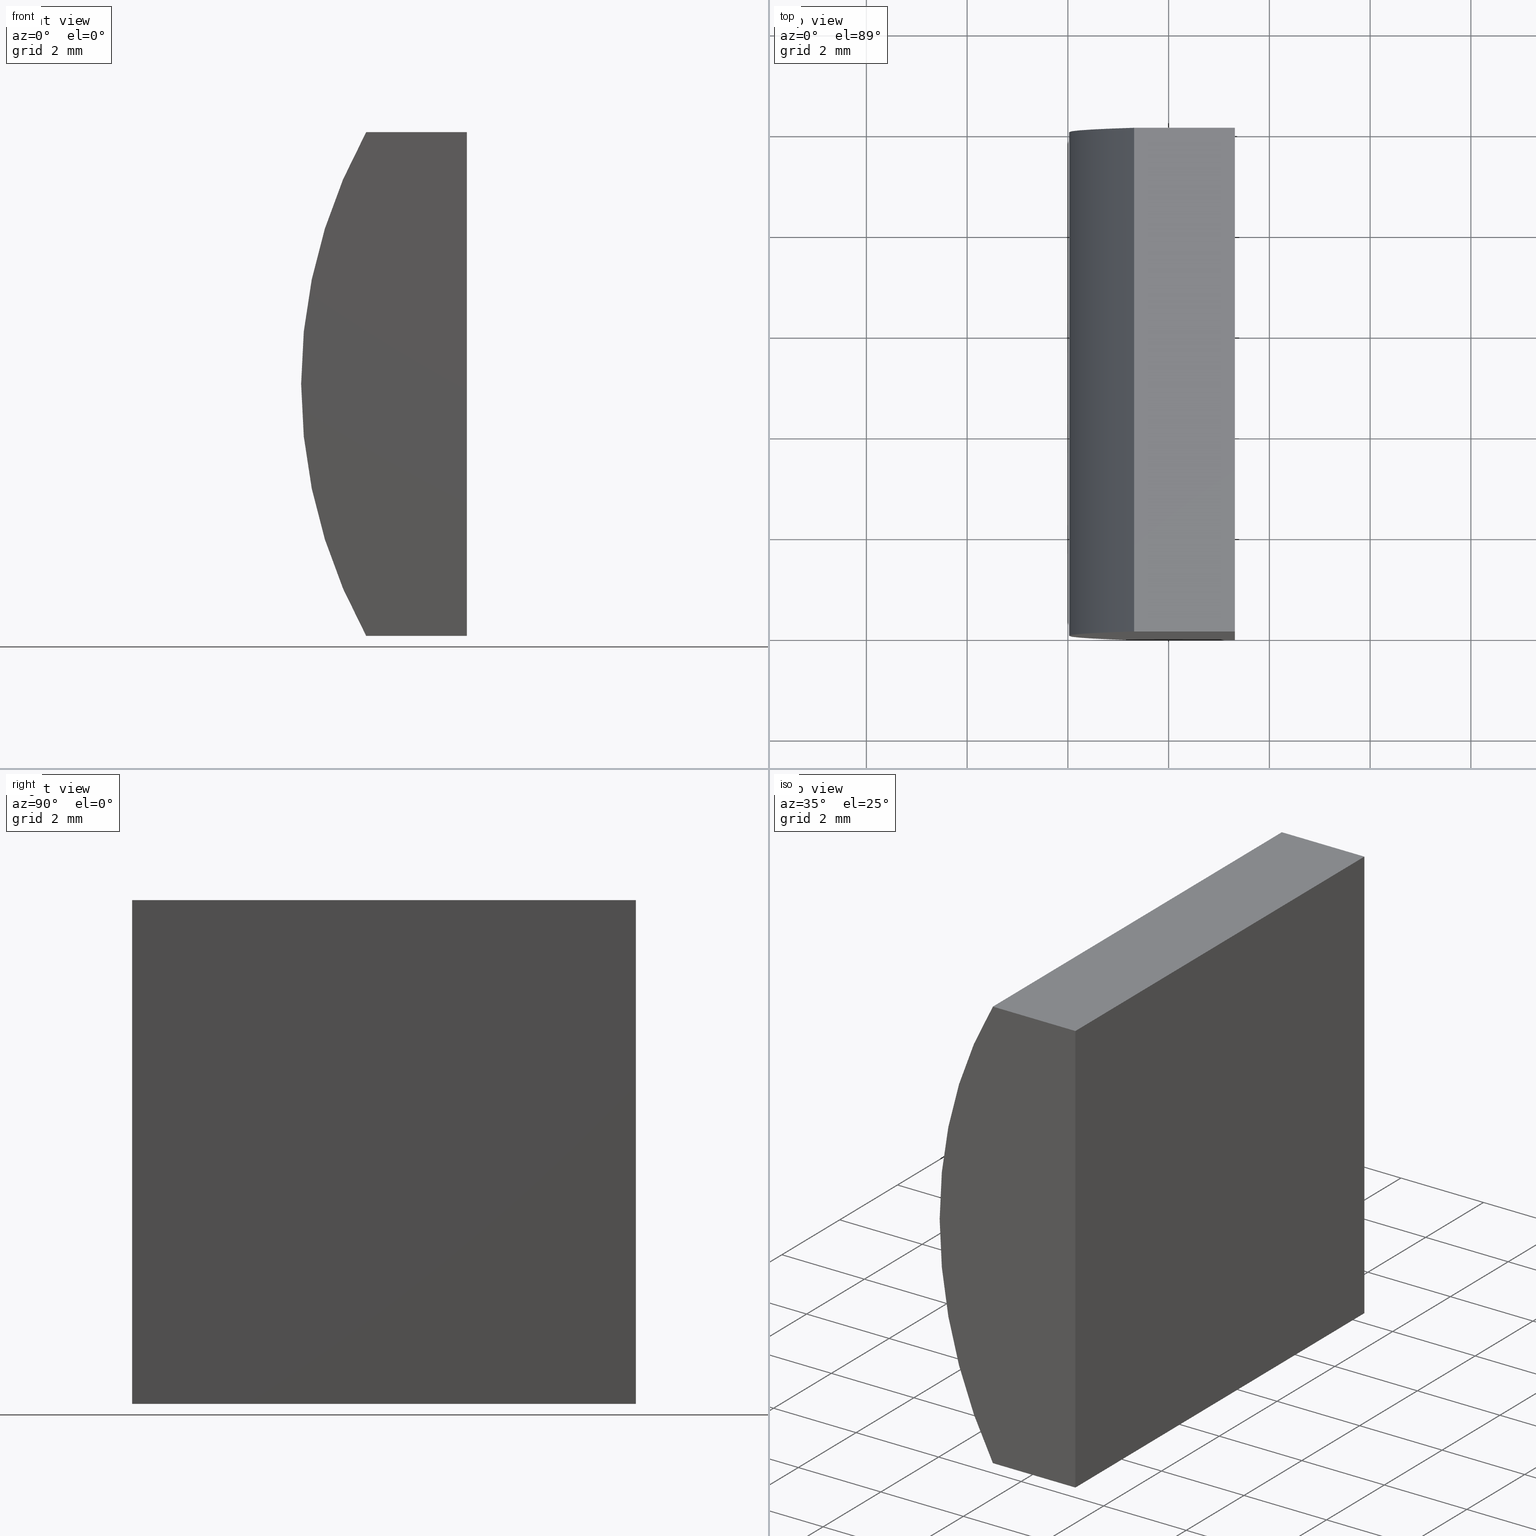
[diagram: canonical four-view strip — front | top / right | iso, engineering-drawing reading convention]
A machine part, canonical four-view strip (front | top / right | iso — engineering-drawing reading convention). The complete STEP part file that produces these views, byte-faithful:
ISO-10303-21;
HEADER;
FILE_DESCRIPTION (( 'STEP AP214' ),
    '1' );
FILE_NAME ('155008.STEP',
    '2019-06-14T07:46:34',
    ( 'user' ),
    ( '΢���й�' ),
    'SwSTEP 2.0',
    'SolidWorks 2016',
    '' );
FILE_SCHEMA (( 'AUTOMOTIVE_DESIGN' ));
ENDSEC;

DATA;
#1 = DIRECTION ( 'NONE',  ( -3.469446951953613700E-016, -0.0000000000000000000, -1.000000000000000000 ) ) ;
#2 = CARTESIAN_POINT ( 'NONE',  ( 4.355204334851265500, 10.00000000000000000, 4.286263797015675000E-017 ) ) ;
#3 = SURFACE_STYLE_FILL_AREA ( #128 ) ;
#4 = MECHANICAL_DESIGN_GEOMETRIC_PRESENTATION_REPRESENTATION (  '', ( #39 ), #151 ) ;
#5 = PLANE ( 'NONE',  #122 ) ;
#6 = ORIENTED_EDGE ( 'NONE', *, *, #132, .F. ) ;
#7 = ORIENTED_EDGE ( 'NONE', *, *, #46, .F. ) ;
#8 = PRESENTATION_STYLE_ASSIGNMENT (( #96 ) ) ;
#9 = CARTESIAN_POINT ( 'NONE',  ( 4.355204334851265500, 10.00000000000000000, 4.286263797015675000E-017 ) ) ;
#10 = ORIENTED_EDGE ( 'NONE', *, *, #28, .F. ) ;
#11 =( GEOMETRIC_REPRESENTATION_CONTEXT ( 3 ) GLOBAL_UNCERTAINTY_ASSIGNED_CONTEXT ( ( #64 ) ) GLOBAL_UNIT_ASSIGNED_CONTEXT ( ( #166, #204, #174 ) ) REPRESENTATION_CONTEXT ( 'NONE', 'WORKASPACE' ) );
#12 = CARTESIAN_POINT ( 'NONE',  ( -4.684093204227751900, 10.00000000000000000, 5.000000000000002700 ) ) ;
#13 = APPLICATION_PROTOCOL_DEFINITION ( 'draft international standard', 'automotive_design', 1998, #168 ) ;
#14 = ORIENTED_EDGE ( 'NONE', *, *, #33, .F. ) ;
#15 =( NAMED_UNIT ( * ) PLANE_ANGLE_UNIT ( ) SI_UNIT ( $, .RADIAN. ) );
#16 = PRESENTATION_LAYER_ASSIGNMENT (  '', '', ( #169 ) ) ;
#17 = COLOUR_RGB ( '',1.000000000000000000, 1.000000000000000000, 1.000000000000000000 ) ;
#18 = CARTESIAN_POINT ( 'NONE',  ( -4.684093204227751900, 10.00000000000000000, 5.000000000000002700 ) ) ;
#19 = CARTESIAN_POINT ( 'NONE',  ( -4.684093204227751900, 10.00000000000000000, 5.000000000000002700 ) ) ;
#20 = FACE_OUTER_BOUND ( 'NONE', #199, .T. ) ;
#21 =( NAMED_UNIT ( * ) PLANE_ANGLE_UNIT ( ) SI_UNIT ( $, .RADIAN. ) );
#22 = VECTOR ( 'NONE', #74, 1000.000000000000000 ) ;
#23 = VECTOR ( 'NONE', #198, 1000.000000000000000 ) ;
#24 = VERTEX_POINT ( 'NONE', #89 ) ;
#25 = VERTEX_POINT ( 'NONE', #56 ) ;
#26 = LINE ( 'NONE', #115, #123 ) ;
#27 = AXIS2_PLACEMENT_3D ( 'NONE', #105, #171, #48 ) ;
#28 = EDGE_CURVE ( 'NONE', #24, #108, #68, .T. ) ;
#29 = LINE ( 'NONE', #141, #160 ) ;
#30 = ORIENTED_EDGE ( 'NONE', *, *, #113, .F. ) ;
#31 = SURFACE_STYLE_USAGE ( .BOTH. , #203 ) ;
#32 = ADVANCED_FACE ( 'NONE', ( #187 ), #93, .F. ) ;
#33 = EDGE_CURVE ( 'NONE', #127, #104, #57, .T. ) ;
#34 = VECTOR ( 'NONE', #116, 1000.000000000000000 ) ;
#35 = ORIENTED_EDGE ( 'NONE', *, *, #113, .T. ) ;
#36 = DIRECTION ( 'NONE',  ( -0.0000000000000000000, -1.000000000000000000, -0.0000000000000000000 ) ) ;
#37 = DIRECTION ( 'NONE',  ( 0.0000000000000000000, 1.000000000000000000, 0.0000000000000000000 ) ) ;
#38 = PRODUCT_DEFINITION ( 'δ֪', '', #154, #50 ) ;
#39 = STYLED_ITEM ( 'NONE', ( #71 ), #55 ) ;
#40 = EDGE_CURVE ( 'NONE', #135, #25, #29, .T. ) ;
#41 =( NAMED_UNIT ( * ) SI_UNIT ( $, .STERADIAN. ) SOLID_ANGLE_UNIT ( ) );
#42 = CARTESIAN_POINT ( 'NONE',  ( -4.684093204227755400, 0.0000000000000000000, -4.999999999999997300 ) ) ;
#43 =( GEOMETRIC_REPRESENTATION_CONTEXT ( 3 ) GLOBAL_UNCERTAINTY_ASSIGNED_CONTEXT ( ( #156 ) ) GLOBAL_UNIT_ASSIGNED_CONTEXT ( ( #200, #15, #178 ) ) REPRESENTATION_CONTEXT ( 'NONE', 'WORKASPACE' ) );
#44 = DIRECTION ( 'NONE',  ( 0.0000000000000000000, 1.000000000000000000, 0.0000000000000000000 ) ) ;
#45 = APPLICATION_PROTOCOL_DEFINITION ( 'draft international standard', 'automotive_design', 1998, #73 ) ;
#46 = EDGE_CURVE ( 'NONE', #152, #135, #53, .T. ) ;
#47 = ADVANCED_FACE ( 'NONE', ( #97 ), #76, .T. ) ;
#48 = DIRECTION ( 'NONE',  ( 3.469446951953613700E-016, 0.0000000000000000000, 1.000000000000000000 ) ) ;
#49 = CARTESIAN_POINT ( 'NONE',  ( -4.684093204227751900, 0.0000000000000000000, 5.000000000000002700 ) ) ;
#50 = PRODUCT_DEFINITION_CONTEXT ( 'detailed design', #168, 'design' ) ;
#51 = LINE ( 'NONE', #155, #186 ) ;
#52 = CARTESIAN_POINT ( 'NONE',  ( -4.684093204227751900, 0.0000000000000000000, 5.000000000000002700 ) ) ;
#53 = LINE ( 'NONE', #49, #23 ) ;
#54 = SURFACE_SIDE_STYLE ('',( #75 ) ) ;
#55 = ADVANCED_BREP_SHAPE_REPRESENTATION ( '155008', ( #69, #107 ), #11 ) ;
#56 = CARTESIAN_POINT ( 'NONE',  ( -2.684795665148739500, 0.0000000000000000000, -4.999999999999999100 ) ) ;
#57 = LINE ( 'NONE', #176, #34 ) ;
#58 = ORIENTED_EDGE ( 'NONE', *, *, #136, .T. ) ;
#59 = ORIENTED_EDGE ( 'NONE', *, *, #46, .T. ) ;
#60 = DIRECTION ( 'NONE',  ( 0.0000000000000000000, 0.0000000000000000000, -1.000000000000000000 ) ) ;
#61 = FILL_AREA_STYLE_COLOUR ( '', #17 ) ;
#62 = SHAPE_DEFINITION_REPRESENTATION ( #114, #55 ) ;
#63 = PLANE ( 'NONE',  #185 ) ;
#64 = UNCERTAINTY_MEASURE_WITH_UNIT (LENGTH_MEASURE( 1.000000000000000100E-005 ), #166, 'distance_accuracy_value', 'NONE');
#65 = COLOUR_RGB ( '',1.000000000000000000, 1.000000000000000000, 1.000000000000000000 ) ;
#66 = CARTESIAN_POINT ( 'NONE',  ( 4.355204334851265500, 0.0000000000000000000, 4.286263797015675000E-017 ) ) ;
#67 = ORIENTED_EDGE ( 'NONE', *, *, #33, .T. ) ;
#68 = LINE ( 'NONE', #80, #130 ) ;
#69 = MANIFOLD_SOLID_BREP ( '͹̨-����1', #91 ) ;
#70 = EDGE_CURVE ( 'NONE', #127, #135, #86, .T. ) ;
#71 = PRESENTATION_STYLE_ASSIGNMENT (( #31 ) ) ;
#72 = DIRECTION ( 'NONE',  ( 1.000000000000000000, 0.0000000000000000000, -8.676664888888492800E-016 ) ) ;
#73 = APPLICATION_CONTEXT ( 'automotive_design' ) ;
#74 = DIRECTION ( 'NONE',  ( -0.0000000000000000000, -1.000000000000000000, -0.0000000000000000000 ) ) ;
#75 = SURFACE_STYLE_FILL_AREA ( #139 ) ;
#76 = PLANE ( 'NONE',  #117 ) ;
#77 = PRESENTATION_LAYER_ASSIGNMENT (  '', '', ( #39 ) ) ;
#78 = ORIENTED_EDGE ( 'NONE', *, *, #102, .T. ) ;
#79 = EDGE_LOOP ( 'NONE', ( #147, #149, #67, #58 ) ) ;
#80 = CARTESIAN_POINT ( 'NONE',  ( -4.684093204227755400, 10.00000000000000000, -4.999999999999997300 ) ) ;
#81 = VECTOR ( 'NONE', #109, 1000.000000000000000 ) ;
#82 = FACE_OUTER_BOUND ( 'NONE', #134, .T. ) ;
#83 = AXIS2_PLACEMENT_3D ( 'NONE', #99, #133, #138 ) ;
#84 = EDGE_LOOP ( 'NONE', ( #196, #30, #146, #7 ) ) ;
#85 = EDGE_CURVE ( 'NONE', #108, #152, #172, .T. ) ;
#86 = LINE ( 'NONE', #158, #81 ) ;
#87 = CARTESIAN_POINT ( 'NONE',  ( -4.684093204227755400, 10.00000000000000000, -4.999999999999997300 ) ) ;
#88 = ORIENTED_EDGE ( 'NONE', *, *, #136, .F. ) ;
#89 = CARTESIAN_POINT ( 'NONE',  ( -4.684093204227755400, 10.00000000000000000, -4.999999999999997300 ) ) ;
#90 = CIRCLE ( 'NONE', #197, 10.33000000000000000 ) ;
#91 = CLOSED_SHELL ( 'NONE', ( #143, #159, #32, #129, #47, #188 ) ) ;
#92 = PRODUCT_CONTEXT ( 'NONE', #73, 'mechanical' ) ;
#93 = PLANE ( 'NONE',  #27 ) ;
#94 = ORIENTED_EDGE ( 'NONE', *, *, #70, .F. ) ;
#95 = DIRECTION ( 'NONE',  ( 0.0000000000000000000, -0.0000000000000000000, 1.000000000000000000 ) ) ;
#96 = SURFACE_STYLE_USAGE ( .BOTH. , #54 ) ;
#97 = FACE_OUTER_BOUND ( 'NONE', #79, .T. ) ;
#98 = VECTOR ( 'NONE', #181, 1000.000000000000000 ) ;
#99 = CARTESIAN_POINT ( 'NONE',  ( 4.355204334851265500, 0.0000000000000000000, 4.286263797015675000E-017 ) ) ;
#100 = MECHANICAL_DESIGN_GEOMETRIC_PRESENTATION_REPRESENTATION (  '', ( #169 ), #43 ) ;
#101 = PLANE ( 'NONE',  #145 ) ;
#102 = EDGE_CURVE ( 'NONE', #180, #152, #173, .T. ) ;
#103 = LINE ( 'NONE', #42, #164 ) ;
#104 = VERTEX_POINT ( 'NONE', #170 ) ;
#105 = CARTESIAN_POINT ( 'NONE',  ( -2.684795665148739500, 10.00000000000000000, -4.999999999999999100 ) ) ;
#106 = ORIENTED_EDGE ( 'NONE', *, *, #85, .T. ) ;
#107 = AXIS2_PLACEMENT_3D ( 'NONE', #201, #195, #162 ) ;
#108 = VERTEX_POINT ( 'NONE', #184 ) ;
#109 = DIRECTION ( 'NONE',  ( -0.0000000000000000000, -1.000000000000000000, -0.0000000000000000000 ) ) ;
#110 = AXIS2_PLACEMENT_3D ( 'NONE', #9, #193, #60 ) ;
#111 = FACE_OUTER_BOUND ( 'NONE', #137, .T. ) ;
#112 = DIRECTION ( 'NONE',  ( -0.0000000000000000000, -1.000000000000000000, -0.0000000000000000000 ) ) ;
#113 = EDGE_CURVE ( 'NONE', #25, #108, #103, .T. ) ;
#114 = PRODUCT_DEFINITION_SHAPE ( 'NONE', 'NONE',  #38 ) ;
#115 = CARTESIAN_POINT ( 'NONE',  ( -4.684093204227751900, 10.00000000000000000, 5.000000000000002700 ) ) ;
#116 = DIRECTION ( 'NONE',  ( -3.469446951953613700E-016, -0.0000000000000000000, -1.000000000000000000 ) ) ;
#117 = AXIS2_PLACEMENT_3D ( 'NONE', #140, #37, #142 ) ;
#118 = ORIENTED_EDGE ( 'NONE', *, *, #70, .T. ) ;
#119 = DIRECTION ( 'NONE',  ( 0.0000000000000000000, 1.000000000000000000, 0.0000000000000000000 ) ) ;
#120 = ORIENTED_EDGE ( 'NONE', *, *, #102, .F. ) ;
#121 = FACE_OUTER_BOUND ( 'NONE', #84, .T. ) ;
#122 = AXIS2_PLACEMENT_3D ( 'NONE', #125, #167, #72 ) ;
#123 = VECTOR ( 'NONE', #175, 1000.000000000000000 ) ;
#124 = DIRECTION ( 'NONE',  ( -1.000000000000000000, -0.0000000000000000000, 8.676664888888492800E-016 ) ) ;
#125 = CARTESIAN_POINT ( 'NONE',  ( -4.684093204227755400, 10.00000000000000000, -4.999999999999997300 ) ) ;
#126 = CARTESIAN_POINT ( 'NONE',  ( -2.684795665148735900, 10.00000000000000000, 5.000000000000002700 ) ) ;
#127 = VERTEX_POINT ( 'NONE', #126 ) ;
#128 = FILL_AREA_STYLE ('',( #183 ) ) ;
#129 = ADVANCED_FACE ( 'NONE', ( #111 ), #5, .F. ) ;
#130 = VECTOR ( 'NONE', #112, 1000.000000000000000 ) ;
#131 = DIRECTION ( 'NONE',  ( 0.0000000000000000000, 0.0000000000000000000, 1.000000000000000000 ) ) ;
#132 = EDGE_CURVE ( 'NONE', #180, #127, #26, .T. ) ;
#133 = DIRECTION ( 'NONE',  ( 0.0000000000000000000, 1.000000000000000000, 0.0000000000000000000 ) ) ;
#134 = EDGE_LOOP ( 'NONE', ( #59, #94, #6, #78 ) ) ;
#135 = VERTEX_POINT ( 'NONE', #163 ) ;
#136 = EDGE_CURVE ( 'NONE', #104, #24, #157, .T. ) ;
#137 = EDGE_LOOP ( 'NONE', ( #35, #10, #88, #202 ) ) ;
#138 = DIRECTION ( 'NONE',  ( 0.0000000000000000000, 0.0000000000000000000, 1.000000000000000000 ) ) ;
#139 = FILL_AREA_STYLE ('',( #61 ) ) ;
#140 = CARTESIAN_POINT ( 'NONE',  ( 4.355204334851265500, 10.00000000000000000, 4.286263797015675000E-017 ) ) ;
#141 = CARTESIAN_POINT ( 'NONE',  ( -2.684795665148739500, 0.0000000000000000000, -4.999999999999999100 ) ) ;
#142 = DIRECTION ( 'NONE',  ( 0.0000000000000000000, -0.0000000000000000000, 1.000000000000000000 ) ) ;
#143 = ADVANCED_FACE ( 'NONE', ( #20 ), #194, .T. ) ;
#144 = DIRECTION ( 'NONE',  ( 0.0000000000000000000, 0.0000000000000000000, -1.000000000000000000 ) ) ;
#145 = AXIS2_PLACEMENT_3D ( 'NONE', #66, #119, #95 ) ;
#146 = ORIENTED_EDGE ( 'NONE', *, *, #40, .F. ) ;
#147 = ORIENTED_EDGE ( 'NONE', *, *, #191, .T. ) ;
#148 =( LENGTH_UNIT ( ) NAMED_UNIT ( * ) SI_UNIT ( .MILLI., .METRE. ) );
#149 = ORIENTED_EDGE ( 'NONE', *, *, #132, .T. ) ;
#150 = PRODUCT ( '155008', '155008', '', ( #92 ) ) ;
#151 =( GEOMETRIC_REPRESENTATION_CONTEXT ( 3 ) GLOBAL_UNCERTAINTY_ASSIGNED_CONTEXT ( ( #161 ) ) GLOBAL_UNIT_ASSIGNED_CONTEXT ( ( #148, #21, #41 ) ) REPRESENTATION_CONTEXT ( 'NONE', 'WORKASPACE' ) );
#152 = VERTEX_POINT ( 'NONE', #52 ) ;
#153 = DIRECTION ( 'NONE',  ( -1.000000000000000000, 0.0000000000000000000, -0.0000000000000000000 ) ) ;
#154 = PRODUCT_DEFINITION_FORMATION_WITH_SPECIFIED_SOURCE ( '�κ�', '', #150, .NOT_KNOWN. ) ;
#155 = CARTESIAN_POINT ( 'NONE',  ( -2.684795665148739500, 10.00000000000000000, -4.999999999999999100 ) ) ;
#156 = UNCERTAINTY_MEASURE_WITH_UNIT (LENGTH_MEASURE( 1.000000000000000100E-005 ), #200, 'distance_accuracy_value', 'NONE');
#157 = LINE ( 'NONE', #87, #98 ) ;
#158 = CARTESIAN_POINT ( 'NONE',  ( -2.684795665148735900, 10.00000000000000000, 5.000000000000002700 ) ) ;
#159 = ADVANCED_FACE ( 'NONE', ( #82 ), #63, .F. ) ;
#160 = VECTOR ( 'NONE', #1, 1000.000000000000000 ) ;
#161 = UNCERTAINTY_MEASURE_WITH_UNIT (LENGTH_MEASURE( 1.000000000000000100E-005 ), #148, 'distance_accuracy_value', 'NONE');
#162 = DIRECTION ( 'NONE',  ( 1.000000000000000000, 0.0000000000000000000, 0.0000000000000000000 ) ) ;
#163 = CARTESIAN_POINT ( 'NONE',  ( -2.684795665148735900, 0.0000000000000000000, 5.000000000000002700 ) ) ;
#164 = VECTOR ( 'NONE', #124, 1000.000000000000000 ) ;
#165 = PRODUCT_RELATED_PRODUCT_CATEGORY ( 'part', '', ( #150 ) ) ;
#166 =( LENGTH_UNIT ( ) NAMED_UNIT ( * ) SI_UNIT ( .MILLI., .METRE. ) );
#167 = DIRECTION ( 'NONE',  ( 8.676664888888492800E-016, -0.0000000000000000000, 1.000000000000000000 ) ) ;
#168 = APPLICATION_CONTEXT ( 'automotive_design' ) ;
#169 = STYLED_ITEM ( 'NONE', ( #8 ), #69 ) ;
#170 = CARTESIAN_POINT ( 'NONE',  ( -2.684795665148739500, 10.00000000000000000, -4.999999999999999100 ) ) ;
#171 = DIRECTION ( 'NONE',  ( -1.000000000000000000, 0.0000000000000000000, 3.469446951953613700E-016 ) ) ;
#172 = CIRCLE ( 'NONE', #83, 10.33000000000000000 ) ;
#173 = LINE ( 'NONE', #19, #22 ) ;
#174 =( NAMED_UNIT ( * ) SI_UNIT ( $, .STERADIAN. ) SOLID_ANGLE_UNIT ( ) );
#175 = DIRECTION ( 'NONE',  ( 1.000000000000000000, 0.0000000000000000000, 0.0000000000000000000 ) ) ;
#176 = CARTESIAN_POINT ( 'NONE',  ( -2.684795665148739500, 10.00000000000000000, -4.999999999999999100 ) ) ;
#177 = EDGE_CURVE ( 'NONE', #104, #25, #51, .T. ) ;
#178 =( NAMED_UNIT ( * ) SI_UNIT ( $, .STERADIAN. ) SOLID_ANGLE_UNIT ( ) );
#179 = ORIENTED_EDGE ( 'NONE', *, *, #191, .F. ) ;
#180 = VERTEX_POINT ( 'NONE', #18 ) ;
#181 = DIRECTION ( 'NONE',  ( -1.000000000000000000, -0.0000000000000000000, 8.676664888888492800E-016 ) ) ;
#182 = EDGE_LOOP ( 'NONE', ( #190, #192, #14, #118 ) ) ;
#183 = FILL_AREA_STYLE_COLOUR ( '', #65 ) ;
#184 = CARTESIAN_POINT ( 'NONE',  ( -4.684093204227755400, 0.0000000000000000000, -4.999999999999997300 ) ) ;
#185 = AXIS2_PLACEMENT_3D ( 'NONE', #12, #144, #153 ) ;
#186 = VECTOR ( 'NONE', #36, 1000.000000000000000 ) ;
#187 = FACE_OUTER_BOUND ( 'NONE', #182, .T. ) ;
#188 = ADVANCED_FACE ( 'NONE', ( #121 ), #101, .F. ) ;
#189 = ORIENTED_EDGE ( 'NONE', *, *, #28, .T. ) ;
#190 = ORIENTED_EDGE ( 'NONE', *, *, #40, .T. ) ;
#191 = EDGE_CURVE ( 'NONE', #24, #180, #90, .T. ) ;
#192 = ORIENTED_EDGE ( 'NONE', *, *, #177, .F. ) ;
#193 = DIRECTION ( 'NONE',  ( -0.0000000000000000000, -1.000000000000000000, -0.0000000000000000000 ) ) ;
#194 = CYLINDRICAL_SURFACE ( 'NONE', #110, 10.33000000000000000 ) ;
#195 = DIRECTION ( 'NONE',  ( 0.0000000000000000000, 0.0000000000000000000, 1.000000000000000000 ) ) ;
#196 = ORIENTED_EDGE ( 'NONE', *, *, #85, .F. ) ;
#197 = AXIS2_PLACEMENT_3D ( 'NONE', #2, #44, #131 ) ;
#198 = DIRECTION ( 'NONE',  ( 1.000000000000000000, 0.0000000000000000000, 0.0000000000000000000 ) ) ;
#199 = EDGE_LOOP ( 'NONE', ( #106, #120, #179, #189 ) ) ;
#200 =( LENGTH_UNIT ( ) NAMED_UNIT ( * ) SI_UNIT ( .MILLI., .METRE. ) );
#201 = CARTESIAN_POINT ( 'NONE',  ( 0.0000000000000000000, 0.0000000000000000000, 0.0000000000000000000 ) ) ;
#202 = ORIENTED_EDGE ( 'NONE', *, *, #177, .T. ) ;
#203 = SURFACE_SIDE_STYLE ('',( #3 ) ) ;
#204 =( NAMED_UNIT ( * ) PLANE_ANGLE_UNIT ( ) SI_UNIT ( $, .RADIAN. ) );
ENDSEC;
END-ISO-10303-21;
